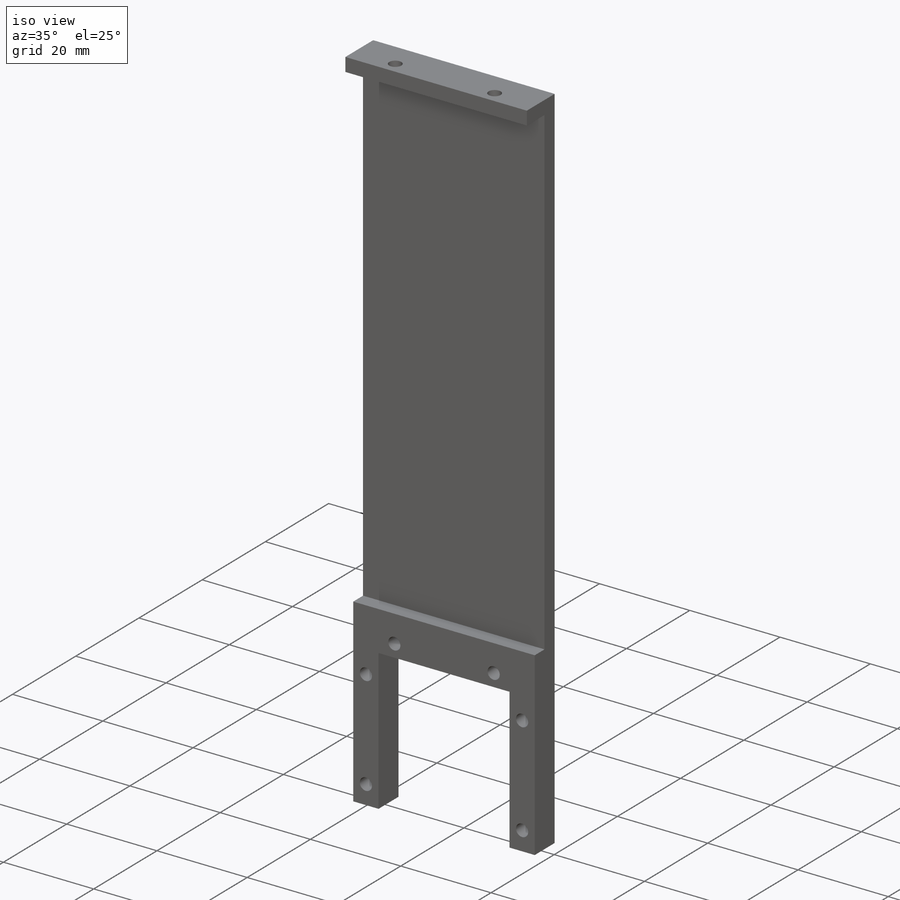
[diagram: iso view]
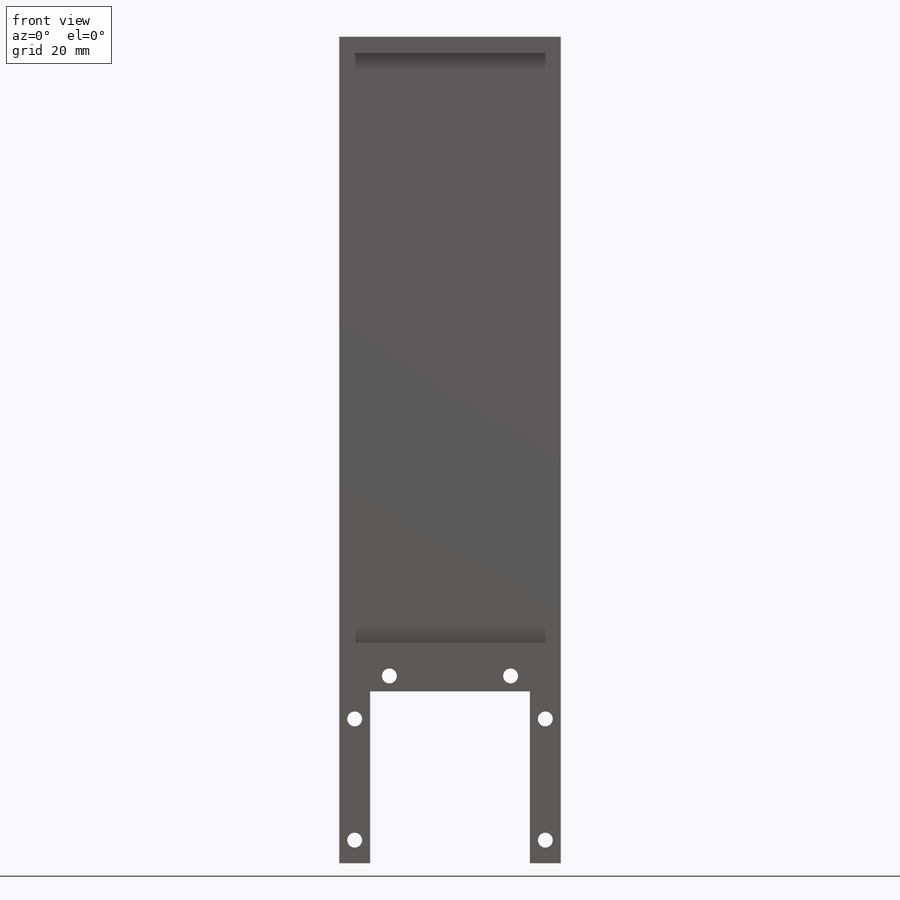
[diagram: front view]
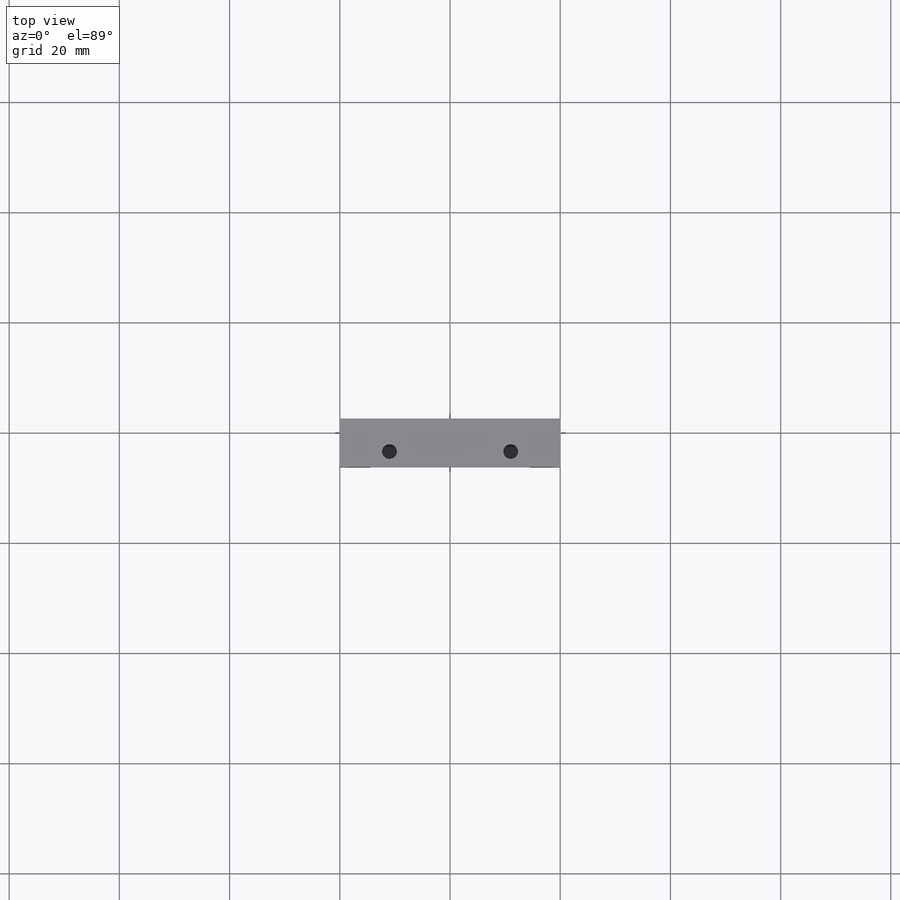
[diagram: top view]
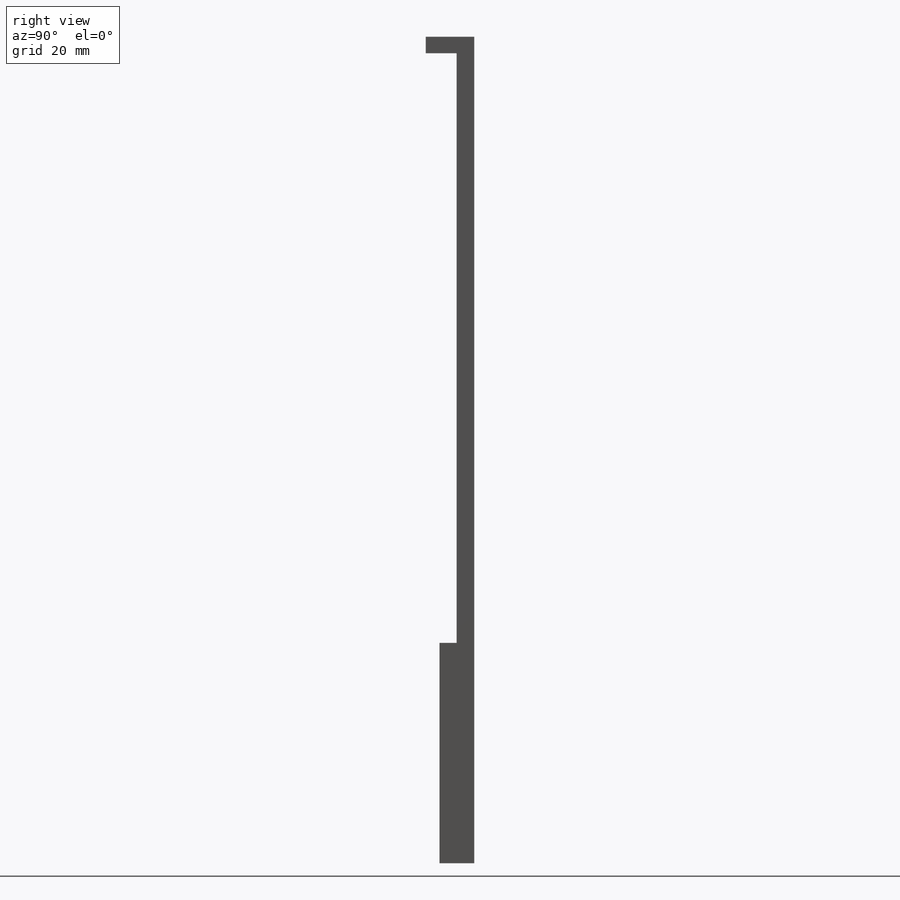
[diagram: right view]
SOLIDWORKS PART (.sldprt)
format: sldprt  version: not decoded by parser v0  size: 216,064 bytes
history: native  units: mm
features: sketch x6, cut_extrude x5, material x1, extrude x1 (+16 scaffold rows collapsed)
feature tree (29):
  scaffold x16  (default folders/planes/origin — collapsed)
  material  "6061 Alloy"
  sketch  "Sketch1"  dims[D1=40.2mm D2=100.0mm]
  extrude  "Boss-Extrude1"  Depth=10mm
  sketch  "Sketch3"  dims[D1=29.0mm D2=31.2mm]
  sketch  "Sketch2"  dims[c1.D1=~6.98083mm c1.D2=2.7mm c2.D1=~4.83647mm c2.D3=22.0mm c2.D4=7.8mm c2.D5=34.6mm c3.D1=22.0mm c3.D6=4.2mm]
  sketch  "Sketch7"  dims[D1=3.2mm]
  cut_extrude  "Cut-Extrude5"  Depth=2.5mm
  sketch  "Sketch4"  dims[D1=3.0mm D2=40.0mm]
  cut_extrude  "Cut-Extrude1"  Depth=5.6mm
  cut_extrude  "Cut-Extrude2"  [1 undecoded]
  cut_extrude  "Cut-Extrude3"  [1 undecoded]
  sketch  "Sketch6"  dims[c1.D1=2.7mm c1.D2=17.0mm c1.D3=2.8mm c2.D2=22.0mm]
  cut_extrude  "Cut-Extrude4"  [1 undecoded]
decode coverage: 9 of 12 modeling features carry decoded parameters
note: ~ marks probable driven/reference dimensions
note: 3 parameter values undecoded
summary: no parameter record found for 3 features
note: suppression state not decoded; provenance and decode notes live in map.json
